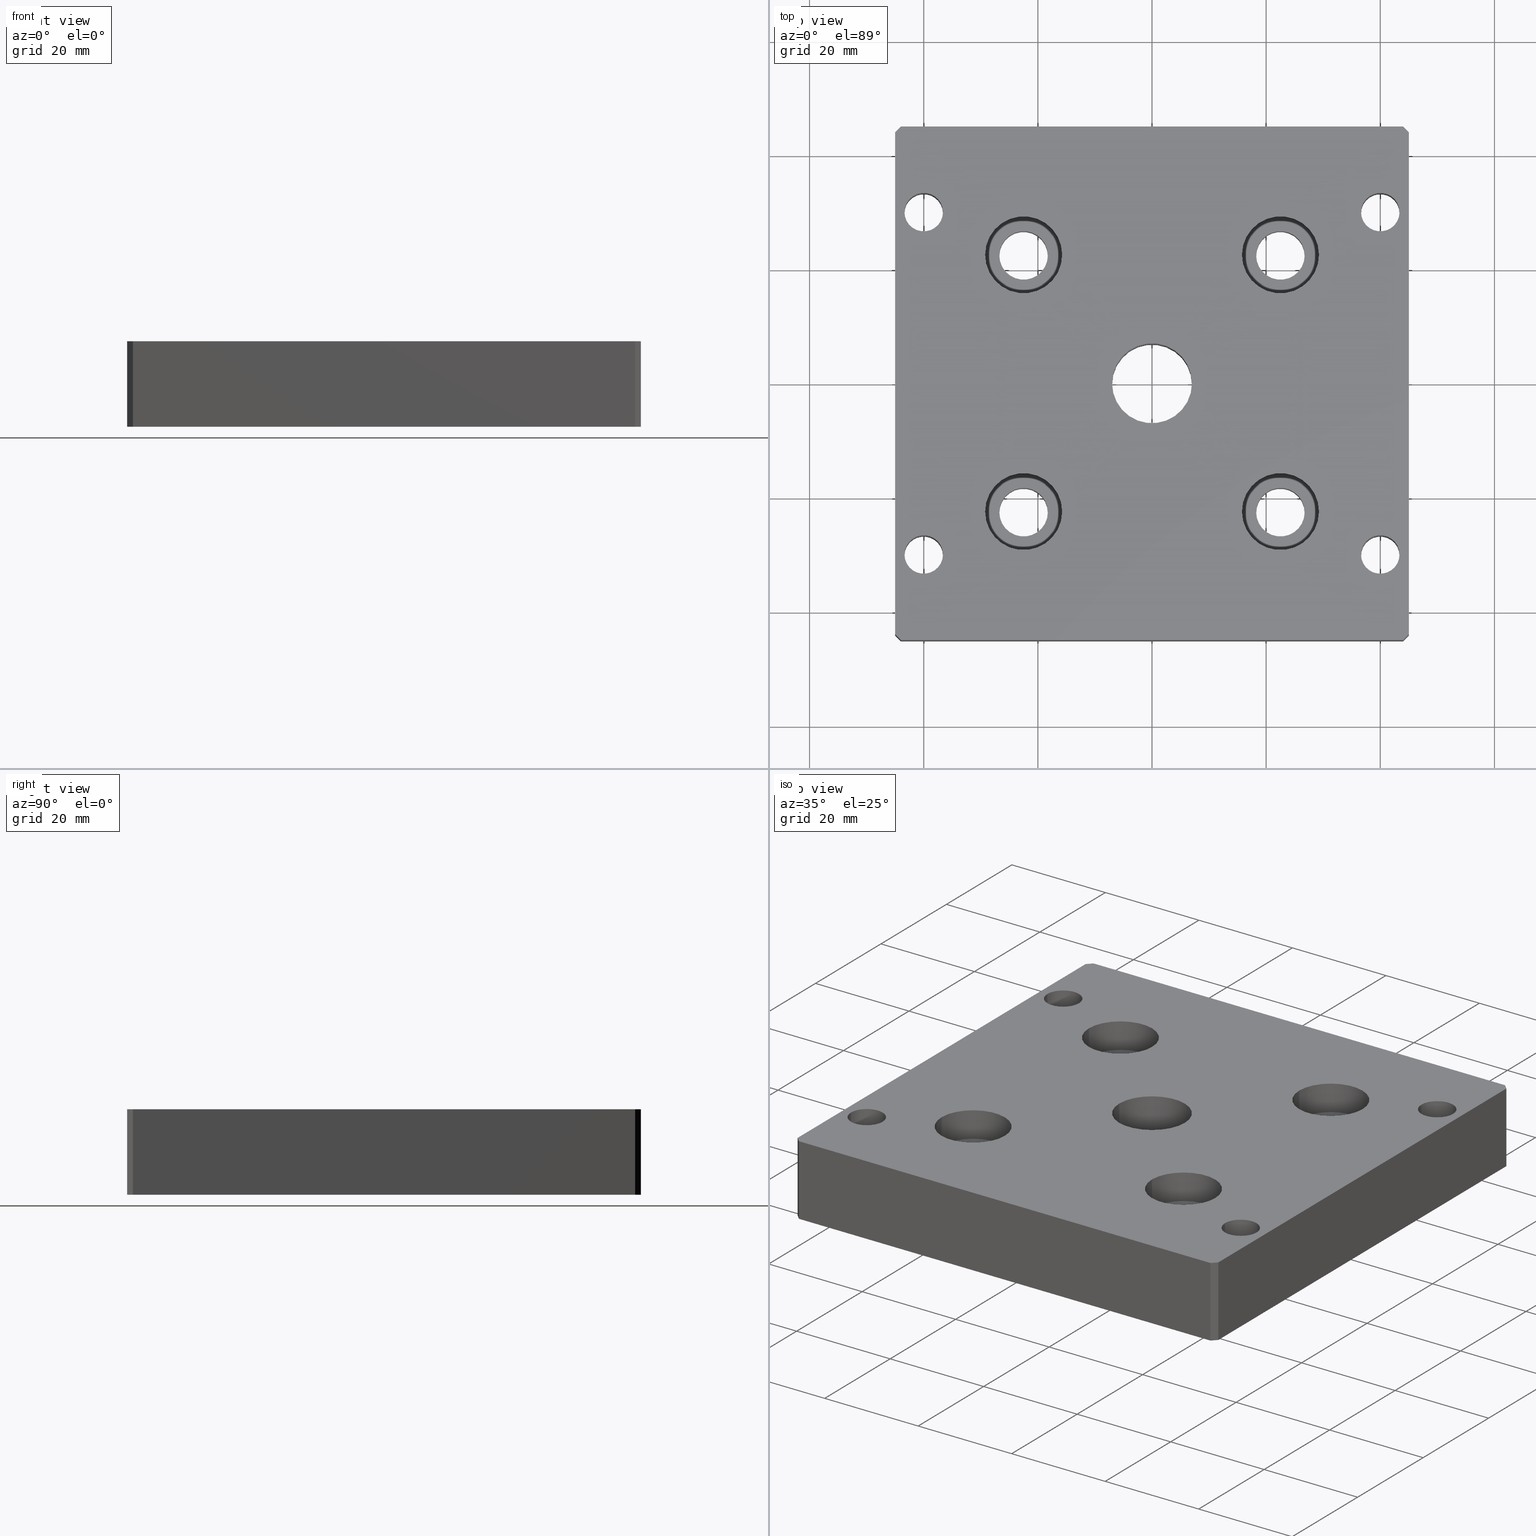
[diagram: canonical four-view strip — front | top / right | iso, engineering-drawing reading convention]
A machine part, canonical four-view strip (front | top / right | iso — engineering-drawing reading convention). The complete STEP part file that produces these views, byte-faithful:
ISO-10303-21;
HEADER;
/* Generated by software containing ST-Developer
 * from STEP Tools, Inc. (www.steptools.com) 
 */

FILE_DESCRIPTION(
/* description */ ('PIASTRA FISS. PIEDI E RUOTE M16 90X90'),
/* implementation_level */ '2;1');

FILE_NAME(
/* name */ 
'Q:\\Catalogo\\2_Accessori Dierre\\Per Download Web e catalogo cartace
o\\CATALOGO PIEDI E SOSTEGNI\\PAGINA 46\\DPSXX0000550.stp',
/* time_stamp */ '2018-11-05T17:26:36+01:00',
/* author */ ('fzagni'),
/* organization */ (''),
/* preprocessor_version */ 'ST-DEVELOPER v16.1',
/* originating_system */ 'Autodesk Inventor 2016',
/* authorisation */ '');

FILE_SCHEMA (('AUTOMOTIVE_DESIGN { 1 0 10303 214 3 1 1 }'));
ENDSEC;

DATA;
#10=MECHANICAL_DESIGN_GEOMETRIC_PRESENTATION_REPRESENTATION('',(#13),#769);
#11=SHAPE_REPRESENTATION_RELATIONSHIP('SRR','None',#778,#12);
#12=ADVANCED_BREP_SHAPE_REPRESENTATION('',(#14),#768);
#13=STYLED_ITEM('',(#787),#14);
#14=MANIFOLD_SOLID_BREP('None',#459);
#15=CYLINDRICAL_SURFACE('',#489,7.);
#16=CYLINDRICAL_SURFACE('',#490,3.375);
#17=CYLINDRICAL_SURFACE('',#491,3.375);
#18=CYLINDRICAL_SURFACE('',#492,3.375);
#19=CYLINDRICAL_SURFACE('',#493,3.375);
#20=CYLINDRICAL_SURFACE('',#494,4.25);
#21=CYLINDRICAL_SURFACE('',#498,6.75);
#22=CYLINDRICAL_SURFACE('',#499,4.25);
#23=CYLINDRICAL_SURFACE('',#503,6.75);
#24=CYLINDRICAL_SURFACE('',#504,4.25);
#25=CYLINDRICAL_SURFACE('',#508,6.75);
#26=CYLINDRICAL_SURFACE('',#509,4.25);
#27=CYLINDRICAL_SURFACE('',#513,6.75);
#28=FACE_BOUND('',#125,.T.);
#29=FACE_BOUND('',#126,.T.);
#30=FACE_BOUND('',#127,.T.);
#31=FACE_BOUND('',#128,.T.);
#32=FACE_BOUND('',#129,.T.);
#33=FACE_BOUND('',#130,.T.);
#34=FACE_BOUND('',#131,.T.);
#35=FACE_BOUND('',#132,.T.);
#36=FACE_BOUND('',#133,.T.);
#37=FACE_BOUND('',#135,.T.);
#38=FACE_BOUND('',#136,.T.);
#39=FACE_BOUND('',#137,.T.);
#40=FACE_BOUND('',#138,.T.);
#41=FACE_BOUND('',#139,.T.);
#42=FACE_BOUND('',#140,.T.);
#43=FACE_BOUND('',#141,.T.);
#44=FACE_BOUND('',#142,.T.);
#45=FACE_BOUND('',#143,.T.);
#46=FACE_BOUND('',#145,.T.);
#47=FACE_BOUND('',#147,.T.);
#48=FACE_BOUND('',#149,.T.);
#49=FACE_BOUND('',#151,.T.);
#50=FACE_BOUND('',#153,.T.);
#51=FACE_BOUND('',#155,.T.);
#52=FACE_BOUND('',#157,.T.);
#53=FACE_BOUND('',#159,.T.);
#54=FACE_BOUND('',#161,.T.);
#55=FACE_BOUND('',#163,.T.);
#56=FACE_BOUND('',#165,.T.);
#57=FACE_BOUND('',#167,.T.);
#58=FACE_BOUND('',#169,.T.);
#59=FACE_BOUND('',#171,.T.);
#60=FACE_BOUND('',#173,.T.);
#61=FACE_BOUND('',#175,.T.);
#62=FACE_BOUND('',#177,.T.);
#63=CIRCLE('',#470,7.);
#64=CIRCLE('',#471,3.375);
#65=CIRCLE('',#472,3.375);
#66=CIRCLE('',#473,3.375);
#67=CIRCLE('',#474,3.375);
#68=CIRCLE('',#475,6.75);
#69=CIRCLE('',#476,6.75);
#70=CIRCLE('',#477,6.75);
#71=CIRCLE('',#478,6.75);
#72=CIRCLE('',#480,7.);
#73=CIRCLE('',#481,3.375);
#74=CIRCLE('',#482,3.375);
#75=CIRCLE('',#483,3.375);
#76=CIRCLE('',#484,3.375);
#77=CIRCLE('',#485,4.25);
#78=CIRCLE('',#486,4.25);
#79=CIRCLE('',#487,4.25);
#80=CIRCLE('',#488,4.25);
#81=CIRCLE('',#495,4.25);
#82=CIRCLE('',#497,6.75);
#83=CIRCLE('',#500,4.25);
#84=CIRCLE('',#502,6.75);
#85=CIRCLE('',#505,4.25);
#86=CIRCLE('',#507,6.75);
#87=CIRCLE('',#510,4.25);
#88=CIRCLE('',#512,6.75);
#89=FACE_OUTER_BOUND('',#116,.T.);
#90=FACE_OUTER_BOUND('',#117,.T.);
#91=FACE_OUTER_BOUND('',#118,.T.);
#92=FACE_OUTER_BOUND('',#119,.T.);
#93=FACE_OUTER_BOUND('',#120,.T.);
#94=FACE_OUTER_BOUND('',#121,.T.);
#95=FACE_OUTER_BOUND('',#122,.T.);
#96=FACE_OUTER_BOUND('',#123,.T.);
#97=FACE_OUTER_BOUND('',#124,.T.);
#98=FACE_OUTER_BOUND('',#134,.T.);
#99=FACE_OUTER_BOUND('',#144,.T.);
#100=FACE_OUTER_BOUND('',#146,.T.);
#101=FACE_OUTER_BOUND('',#148,.T.);
#102=FACE_OUTER_BOUND('',#150,.T.);
#103=FACE_OUTER_BOUND('',#152,.T.);
#104=FACE_OUTER_BOUND('',#154,.T.);
#105=FACE_OUTER_BOUND('',#156,.T.);
#106=FACE_OUTER_BOUND('',#158,.T.);
#107=FACE_OUTER_BOUND('',#160,.T.);
#108=FACE_OUTER_BOUND('',#162,.T.);
#109=FACE_OUTER_BOUND('',#164,.T.);
#110=FACE_OUTER_BOUND('',#166,.T.);
#111=FACE_OUTER_BOUND('',#168,.T.);
#112=FACE_OUTER_BOUND('',#170,.T.);
#113=FACE_OUTER_BOUND('',#172,.T.);
#114=FACE_OUTER_BOUND('',#174,.T.);
#115=FACE_OUTER_BOUND('',#176,.T.);
#116=EDGE_LOOP('',(#318,#319,#320,#321));
#117=EDGE_LOOP('',(#322,#323,#324,#325));
#118=EDGE_LOOP('',(#326,#327,#328,#329));
#119=EDGE_LOOP('',(#330,#331,#332,#333));
#120=EDGE_LOOP('',(#334,#335,#336,#337));
#121=EDGE_LOOP('',(#338,#339,#340,#341));
#122=EDGE_LOOP('',(#342,#343,#344,#345));
#123=EDGE_LOOP('',(#346,#347,#348,#349));
#124=EDGE_LOOP('',(#350,#351,#352,#353,#354,#355,#356,#357));
#125=EDGE_LOOP('',(#358));
#126=EDGE_LOOP('',(#359));
#127=EDGE_LOOP('',(#360));
#128=EDGE_LOOP('',(#361));
#129=EDGE_LOOP('',(#362));
#130=EDGE_LOOP('',(#363));
#131=EDGE_LOOP('',(#364));
#132=EDGE_LOOP('',(#365));
#133=EDGE_LOOP('',(#366));
#134=EDGE_LOOP('',(#367,#368,#369,#370,#371,#372,#373,#374));
#135=EDGE_LOOP('',(#375));
#136=EDGE_LOOP('',(#376));
#137=EDGE_LOOP('',(#377));
#138=EDGE_LOOP('',(#378));
#139=EDGE_LOOP('',(#379));
#140=EDGE_LOOP('',(#380));
#141=EDGE_LOOP('',(#381));
#142=EDGE_LOOP('',(#382));
#143=EDGE_LOOP('',(#383));
#144=EDGE_LOOP('',(#384));
#145=EDGE_LOOP('',(#385));
#146=EDGE_LOOP('',(#386));
#147=EDGE_LOOP('',(#387));
#148=EDGE_LOOP('',(#388));
#149=EDGE_LOOP('',(#389));
#150=EDGE_LOOP('',(#390));
#151=EDGE_LOOP('',(#391));
#152=EDGE_LOOP('',(#392));
#153=EDGE_LOOP('',(#393));
#154=EDGE_LOOP('',(#394));
#155=EDGE_LOOP('',(#395));
#156=EDGE_LOOP('',(#396));
#157=EDGE_LOOP('',(#397));
#158=EDGE_LOOP('',(#398));
#159=EDGE_LOOP('',(#399));
#160=EDGE_LOOP('',(#400));
#161=EDGE_LOOP('',(#401));
#162=EDGE_LOOP('',(#402));
#163=EDGE_LOOP('',(#403));
#164=EDGE_LOOP('',(#404));
#165=EDGE_LOOP('',(#405));
#166=EDGE_LOOP('',(#406));
#167=EDGE_LOOP('',(#407));
#168=EDGE_LOOP('',(#408));
#169=EDGE_LOOP('',(#409));
#170=EDGE_LOOP('',(#410));
#171=EDGE_LOOP('',(#411));
#172=EDGE_LOOP('',(#412));
#173=EDGE_LOOP('',(#413));
#174=EDGE_LOOP('',(#414));
#175=EDGE_LOOP('',(#415));
#176=EDGE_LOOP('',(#416));
#177=EDGE_LOOP('',(#417));
#178=LINE('',#650,#202);
#179=LINE('',#652,#203);
#180=LINE('',#654,#204);
#181=LINE('',#655,#205);
#182=LINE('',#658,#206);
#183=LINE('',#660,#207);
#184=LINE('',#661,#208);
#185=LINE('',#664,#209);
#186=LINE('',#666,#210);
#187=LINE('',#667,#211);
#188=LINE('',#670,#212);
#189=LINE('',#672,#213);
#190=LINE('',#673,#214);
#191=LINE('',#676,#215);
#192=LINE('',#678,#216);
#193=LINE('',#679,#217);
#194=LINE('',#682,#218);
#195=LINE('',#684,#219);
#196=LINE('',#685,#220);
#197=LINE('',#688,#221);
#198=LINE('',#690,#222);
#199=LINE('',#691,#223);
#200=LINE('',#693,#224);
#201=LINE('',#694,#225);
#202=VECTOR('',#518,15.);
#203=VECTOR('',#519,1.41421356236698);
#204=VECTOR('',#520,15.);
#205=VECTOR('',#521,1.41421356236698);
#206=VECTOR('',#524,87.999999999648);
#207=VECTOR('',#525,15.);
#208=VECTOR('',#526,87.999999999648);
#209=VECTOR('',#529,1.41421356236763);
#210=VECTOR('',#530,15.);
#211=VECTOR('',#531,1.41421356236763);
#212=VECTOR('',#534,87.999999999648);
#213=VECTOR('',#535,15.);
#214=VECTOR('',#536,87.999999999648);
#215=VECTOR('',#539,1.41421356236763);
#216=VECTOR('',#540,15.);
#217=VECTOR('',#541,1.41421356236763);
#218=VECTOR('',#544,87.999999999648);
#219=VECTOR('',#545,15.);
#220=VECTOR('',#546,87.999999999648);
#221=VECTOR('',#549,1.41421356236698);
#222=VECTOR('',#550,15.);
#223=VECTOR('',#551,1.41421356236698);
#224=VECTOR('',#554,87.999999999648);
#225=VECTOR('',#555,87.999999999648);
#226=VERTEX_POINT('',#648);
#227=VERTEX_POINT('',#649);
#228=VERTEX_POINT('',#651);
#229=VERTEX_POINT('',#653);
#230=VERTEX_POINT('',#657);
#231=VERTEX_POINT('',#659);
#232=VERTEX_POINT('',#663);
#233=VERTEX_POINT('',#665);
#234=VERTEX_POINT('',#669);
#235=VERTEX_POINT('',#671);
#236=VERTEX_POINT('',#675);
#237=VERTEX_POINT('',#677);
#238=VERTEX_POINT('',#681);
#239=VERTEX_POINT('',#683);
#240=VERTEX_POINT('',#687);
#241=VERTEX_POINT('',#689);
#242=VERTEX_POINT('',#696);
#243=VERTEX_POINT('',#698);
#244=VERTEX_POINT('',#700);
#245=VERTEX_POINT('',#702);
#246=VERTEX_POINT('',#704);
#247=VERTEX_POINT('',#706);
#248=VERTEX_POINT('',#708);
#249=VERTEX_POINT('',#710);
#250=VERTEX_POINT('',#712);
#251=VERTEX_POINT('',#715);
#252=VERTEX_POINT('',#717);
#253=VERTEX_POINT('',#719);
#254=VERTEX_POINT('',#721);
#255=VERTEX_POINT('',#723);
#256=VERTEX_POINT('',#725);
#257=VERTEX_POINT('',#727);
#258=VERTEX_POINT('',#729);
#259=VERTEX_POINT('',#731);
#260=VERTEX_POINT('',#739);
#261=VERTEX_POINT('',#742);
#262=VERTEX_POINT('',#746);
#263=VERTEX_POINT('',#749);
#264=VERTEX_POINT('',#753);
#265=VERTEX_POINT('',#756);
#266=VERTEX_POINT('',#760);
#267=VERTEX_POINT('',#763);
#268=EDGE_CURVE('',#226,#227,#178,.T.);
#269=EDGE_CURVE('',#227,#228,#179,.T.);
#270=EDGE_CURVE('',#229,#228,#180,.T.);
#271=EDGE_CURVE('',#226,#229,#181,.T.);
#272=EDGE_CURVE('',#228,#230,#182,.T.);
#273=EDGE_CURVE('',#231,#230,#183,.T.);
#274=EDGE_CURVE('',#229,#231,#184,.T.);
#275=EDGE_CURVE('',#230,#232,#185,.T.);
#276=EDGE_CURVE('',#233,#232,#186,.T.);
#277=EDGE_CURVE('',#231,#233,#187,.T.);
#278=EDGE_CURVE('',#232,#234,#188,.T.);
#279=EDGE_CURVE('',#235,#234,#189,.T.);
#280=EDGE_CURVE('',#233,#235,#190,.T.);
#281=EDGE_CURVE('',#234,#236,#191,.T.);
#282=EDGE_CURVE('',#237,#236,#192,.T.);
#283=EDGE_CURVE('',#235,#237,#193,.T.);
#284=EDGE_CURVE('',#236,#238,#194,.T.);
#285=EDGE_CURVE('',#239,#238,#195,.T.);
#286=EDGE_CURVE('',#237,#239,#196,.T.);
#287=EDGE_CURVE('',#238,#240,#197,.T.);
#288=EDGE_CURVE('',#241,#240,#198,.T.);
#289=EDGE_CURVE('',#239,#241,#199,.T.);
#290=EDGE_CURVE('',#240,#227,#200,.T.);
#291=EDGE_CURVE('',#241,#226,#201,.T.);
#292=EDGE_CURVE('',#242,#242,#63,.T.);
#293=EDGE_CURVE('',#243,#243,#64,.T.);
#294=EDGE_CURVE('',#244,#244,#65,.T.);
#295=EDGE_CURVE('',#245,#245,#66,.T.);
#296=EDGE_CURVE('',#246,#246,#67,.T.);
#297=EDGE_CURVE('',#247,#247,#68,.T.);
#298=EDGE_CURVE('',#248,#248,#69,.T.);
#299=EDGE_CURVE('',#249,#249,#70,.T.);
#300=EDGE_CURVE('',#250,#250,#71,.T.);
#301=EDGE_CURVE('',#251,#251,#72,.T.);
#302=EDGE_CURVE('',#252,#252,#73,.T.);
#303=EDGE_CURVE('',#253,#253,#74,.T.);
#304=EDGE_CURVE('',#254,#254,#75,.T.);
#305=EDGE_CURVE('',#255,#255,#76,.T.);
#306=EDGE_CURVE('',#256,#256,#77,.T.);
#307=EDGE_CURVE('',#257,#257,#78,.T.);
#308=EDGE_CURVE('',#258,#258,#79,.T.);
#309=EDGE_CURVE('',#259,#259,#80,.T.);
#310=EDGE_CURVE('',#260,#260,#81,.T.);
#311=EDGE_CURVE('',#261,#261,#82,.T.);
#312=EDGE_CURVE('',#262,#262,#83,.T.);
#313=EDGE_CURVE('',#263,#263,#84,.T.);
#314=EDGE_CURVE('',#264,#264,#85,.T.);
#315=EDGE_CURVE('',#265,#265,#86,.T.);
#316=EDGE_CURVE('',#266,#266,#87,.T.);
#317=EDGE_CURVE('',#267,#267,#88,.T.);
#318=ORIENTED_EDGE('',*,*,#268,.T.);
#319=ORIENTED_EDGE('',*,*,#269,.T.);
#320=ORIENTED_EDGE('',*,*,#270,.F.);
#321=ORIENTED_EDGE('',*,*,#271,.F.);
#322=ORIENTED_EDGE('',*,*,#270,.T.);
#323=ORIENTED_EDGE('',*,*,#272,.T.);
#324=ORIENTED_EDGE('',*,*,#273,.F.);
#325=ORIENTED_EDGE('',*,*,#274,.F.);
#326=ORIENTED_EDGE('',*,*,#273,.T.);
#327=ORIENTED_EDGE('',*,*,#275,.T.);
#328=ORIENTED_EDGE('',*,*,#276,.F.);
#329=ORIENTED_EDGE('',*,*,#277,.F.);
#330=ORIENTED_EDGE('',*,*,#276,.T.);
#331=ORIENTED_EDGE('',*,*,#278,.T.);
#332=ORIENTED_EDGE('',*,*,#279,.F.);
#333=ORIENTED_EDGE('',*,*,#280,.F.);
#334=ORIENTED_EDGE('',*,*,#279,.T.);
#335=ORIENTED_EDGE('',*,*,#281,.T.);
#336=ORIENTED_EDGE('',*,*,#282,.F.);
#337=ORIENTED_EDGE('',*,*,#283,.F.);
#338=ORIENTED_EDGE('',*,*,#282,.T.);
#339=ORIENTED_EDGE('',*,*,#284,.T.);
#340=ORIENTED_EDGE('',*,*,#285,.F.);
#341=ORIENTED_EDGE('',*,*,#286,.F.);
#342=ORIENTED_EDGE('',*,*,#285,.T.);
#343=ORIENTED_EDGE('',*,*,#287,.T.);
#344=ORIENTED_EDGE('',*,*,#288,.F.);
#345=ORIENTED_EDGE('',*,*,#289,.F.);
#346=ORIENTED_EDGE('',*,*,#288,.T.);
#347=ORIENTED_EDGE('',*,*,#290,.T.);
#348=ORIENTED_EDGE('',*,*,#268,.F.);
#349=ORIENTED_EDGE('',*,*,#291,.F.);
#350=ORIENTED_EDGE('',*,*,#271,.T.);
#351=ORIENTED_EDGE('',*,*,#274,.T.);
#352=ORIENTED_EDGE('',*,*,#277,.T.);
#353=ORIENTED_EDGE('',*,*,#280,.T.);
#354=ORIENTED_EDGE('',*,*,#283,.T.);
#355=ORIENTED_EDGE('',*,*,#286,.T.);
#356=ORIENTED_EDGE('',*,*,#289,.T.);
#357=ORIENTED_EDGE('',*,*,#291,.T.);
#358=ORIENTED_EDGE('',*,*,#292,.F.);
#359=ORIENTED_EDGE('',*,*,#293,.F.);
#360=ORIENTED_EDGE('',*,*,#294,.F.);
#361=ORIENTED_EDGE('',*,*,#295,.F.);
#362=ORIENTED_EDGE('',*,*,#296,.F.);
#363=ORIENTED_EDGE('',*,*,#297,.F.);
#364=ORIENTED_EDGE('',*,*,#298,.F.);
#365=ORIENTED_EDGE('',*,*,#299,.F.);
#366=ORIENTED_EDGE('',*,*,#300,.F.);
#367=ORIENTED_EDGE('',*,*,#290,.F.);
#368=ORIENTED_EDGE('',*,*,#287,.F.);
#369=ORIENTED_EDGE('',*,*,#284,.F.);
#370=ORIENTED_EDGE('',*,*,#281,.F.);
#371=ORIENTED_EDGE('',*,*,#278,.F.);
#372=ORIENTED_EDGE('',*,*,#275,.F.);
#373=ORIENTED_EDGE('',*,*,#272,.F.);
#374=ORIENTED_EDGE('',*,*,#269,.F.);
#375=ORIENTED_EDGE('',*,*,#301,.F.);
#376=ORIENTED_EDGE('',*,*,#302,.F.);
#377=ORIENTED_EDGE('',*,*,#303,.F.);
#378=ORIENTED_EDGE('',*,*,#304,.F.);
#379=ORIENTED_EDGE('',*,*,#305,.F.);
#380=ORIENTED_EDGE('',*,*,#306,.T.);
#381=ORIENTED_EDGE('',*,*,#307,.T.);
#382=ORIENTED_EDGE('',*,*,#308,.T.);
#383=ORIENTED_EDGE('',*,*,#309,.T.);
#384=ORIENTED_EDGE('',*,*,#301,.T.);
#385=ORIENTED_EDGE('',*,*,#292,.T.);
#386=ORIENTED_EDGE('',*,*,#302,.T.);
#387=ORIENTED_EDGE('',*,*,#293,.T.);
#388=ORIENTED_EDGE('',*,*,#303,.T.);
#389=ORIENTED_EDGE('',*,*,#294,.T.);
#390=ORIENTED_EDGE('',*,*,#304,.T.);
#391=ORIENTED_EDGE('',*,*,#295,.T.);
#392=ORIENTED_EDGE('',*,*,#305,.T.);
#393=ORIENTED_EDGE('',*,*,#296,.T.);
#394=ORIENTED_EDGE('',*,*,#306,.F.);
#395=ORIENTED_EDGE('',*,*,#310,.T.);
#396=ORIENTED_EDGE('',*,*,#311,.T.);
#397=ORIENTED_EDGE('',*,*,#310,.F.);
#398=ORIENTED_EDGE('',*,*,#297,.T.);
#399=ORIENTED_EDGE('',*,*,#311,.F.);
#400=ORIENTED_EDGE('',*,*,#307,.F.);
#401=ORIENTED_EDGE('',*,*,#312,.T.);
#402=ORIENTED_EDGE('',*,*,#313,.T.);
#403=ORIENTED_EDGE('',*,*,#312,.F.);
#404=ORIENTED_EDGE('',*,*,#298,.T.);
#405=ORIENTED_EDGE('',*,*,#313,.F.);
#406=ORIENTED_EDGE('',*,*,#308,.F.);
#407=ORIENTED_EDGE('',*,*,#314,.T.);
#408=ORIENTED_EDGE('',*,*,#315,.T.);
#409=ORIENTED_EDGE('',*,*,#314,.F.);
#410=ORIENTED_EDGE('',*,*,#299,.T.);
#411=ORIENTED_EDGE('',*,*,#315,.F.);
#412=ORIENTED_EDGE('',*,*,#309,.F.);
#413=ORIENTED_EDGE('',*,*,#316,.T.);
#414=ORIENTED_EDGE('',*,*,#317,.T.);
#415=ORIENTED_EDGE('',*,*,#316,.F.);
#416=ORIENTED_EDGE('',*,*,#300,.T.);
#417=ORIENTED_EDGE('',*,*,#317,.F.);
#418=PLANE('',#461);
#419=PLANE('',#462);
#420=PLANE('',#463);
#421=PLANE('',#464);
#422=PLANE('',#465);
#423=PLANE('',#466);
#424=PLANE('',#467);
#425=PLANE('',#468);
#426=PLANE('',#469);
#427=PLANE('',#479);
#428=PLANE('',#496);
#429=PLANE('',#501);
#430=PLANE('',#506);
#431=PLANE('',#511);
#432=ADVANCED_FACE('',(#89),#418,.F.);
#433=ADVANCED_FACE('',(#90),#419,.F.);
#434=ADVANCED_FACE('',(#91),#420,.F.);
#435=ADVANCED_FACE('',(#92),#421,.F.);
#436=ADVANCED_FACE('',(#93),#422,.F.);
#437=ADVANCED_FACE('',(#94),#423,.F.);
#438=ADVANCED_FACE('',(#95),#424,.F.);
#439=ADVANCED_FACE('',(#96),#425,.F.);
#440=ADVANCED_FACE('',(#97,#28,#29,#30,#31,#32,#33,#34,#35,#36),#426,.T.);
#441=ADVANCED_FACE('',(#98,#37,#38,#39,#40,#41,#42,#43,#44,#45),#427,.F.);
#442=ADVANCED_FACE('',(#99,#46),#15,.F.);
#443=ADVANCED_FACE('',(#100,#47),#16,.F.);
#444=ADVANCED_FACE('',(#101,#48),#17,.F.);
#445=ADVANCED_FACE('',(#102,#49),#18,.F.);
#446=ADVANCED_FACE('',(#103,#50),#19,.F.);
#447=ADVANCED_FACE('',(#104,#51),#20,.F.);
#448=ADVANCED_FACE('',(#105,#52),#428,.F.);
#449=ADVANCED_FACE('',(#106,#53),#21,.F.);
#450=ADVANCED_FACE('',(#107,#54),#22,.F.);
#451=ADVANCED_FACE('',(#108,#55),#429,.F.);
#452=ADVANCED_FACE('',(#109,#56),#23,.F.);
#453=ADVANCED_FACE('',(#110,#57),#24,.F.);
#454=ADVANCED_FACE('',(#111,#58),#430,.F.);
#455=ADVANCED_FACE('',(#112,#59),#25,.F.);
#456=ADVANCED_FACE('',(#113,#60),#26,.F.);
#457=ADVANCED_FACE('',(#114,#61),#431,.F.);
#458=ADVANCED_FACE('',(#115,#62),#27,.F.);
#459=CLOSED_SHELL('',(#432,#433,#434,#435,#436,#437,#438,#439,#440,#441,
#442,#443,#444,#445,#446,#447,#448,#449,#450,#451,#452,#453,#454,#455,#456,
#457,#458));
#460=AXIS2_PLACEMENT_3D('placement',#646,#514,#515);
#461=AXIS2_PLACEMENT_3D('',#647,#516,#517);
#462=AXIS2_PLACEMENT_3D('',#656,#522,#523);
#463=AXIS2_PLACEMENT_3D('',#662,#527,#528);
#464=AXIS2_PLACEMENT_3D('',#668,#532,#533);
#465=AXIS2_PLACEMENT_3D('',#674,#537,#538);
#466=AXIS2_PLACEMENT_3D('',#680,#542,#543);
#467=AXIS2_PLACEMENT_3D('',#686,#547,#548);
#468=AXIS2_PLACEMENT_3D('',#692,#552,#553);
#469=AXIS2_PLACEMENT_3D('',#695,#556,#557);
#470=AXIS2_PLACEMENT_3D('',#697,#558,#559);
#471=AXIS2_PLACEMENT_3D('',#699,#560,#561);
#472=AXIS2_PLACEMENT_3D('',#701,#562,#563);
#473=AXIS2_PLACEMENT_3D('',#703,#564,#565);
#474=AXIS2_PLACEMENT_3D('',#705,#566,#567);
#475=AXIS2_PLACEMENT_3D('',#707,#568,#569);
#476=AXIS2_PLACEMENT_3D('',#709,#570,#571);
#477=AXIS2_PLACEMENT_3D('',#711,#572,#573);
#478=AXIS2_PLACEMENT_3D('',#713,#574,#575);
#479=AXIS2_PLACEMENT_3D('',#714,#576,#577);
#480=AXIS2_PLACEMENT_3D('',#716,#578,#579);
#481=AXIS2_PLACEMENT_3D('',#718,#580,#581);
#482=AXIS2_PLACEMENT_3D('',#720,#582,#583);
#483=AXIS2_PLACEMENT_3D('',#722,#584,#585);
#484=AXIS2_PLACEMENT_3D('',#724,#586,#587);
#485=AXIS2_PLACEMENT_3D('',#726,#588,#589);
#486=AXIS2_PLACEMENT_3D('',#728,#590,#591);
#487=AXIS2_PLACEMENT_3D('',#730,#592,#593);
#488=AXIS2_PLACEMENT_3D('',#732,#594,#595);
#489=AXIS2_PLACEMENT_3D('',#733,#596,#597);
#490=AXIS2_PLACEMENT_3D('',#734,#598,#599);
#491=AXIS2_PLACEMENT_3D('',#735,#600,#601);
#492=AXIS2_PLACEMENT_3D('',#736,#602,#603);
#493=AXIS2_PLACEMENT_3D('',#737,#604,#605);
#494=AXIS2_PLACEMENT_3D('',#738,#606,#607);
#495=AXIS2_PLACEMENT_3D('',#740,#608,#609);
#496=AXIS2_PLACEMENT_3D('',#741,#610,#611);
#497=AXIS2_PLACEMENT_3D('',#743,#612,#613);
#498=AXIS2_PLACEMENT_3D('',#744,#614,#615);
#499=AXIS2_PLACEMENT_3D('',#745,#616,#617);
#500=AXIS2_PLACEMENT_3D('',#747,#618,#619);
#501=AXIS2_PLACEMENT_3D('',#748,#620,#621);
#502=AXIS2_PLACEMENT_3D('',#750,#622,#623);
#503=AXIS2_PLACEMENT_3D('',#751,#624,#625);
#504=AXIS2_PLACEMENT_3D('',#752,#626,#627);
#505=AXIS2_PLACEMENT_3D('',#754,#628,#629);
#506=AXIS2_PLACEMENT_3D('',#755,#630,#631);
#507=AXIS2_PLACEMENT_3D('',#757,#632,#633);
#508=AXIS2_PLACEMENT_3D('',#758,#634,#635);
#509=AXIS2_PLACEMENT_3D('',#759,#636,#637);
#510=AXIS2_PLACEMENT_3D('',#761,#638,#639);
#511=AXIS2_PLACEMENT_3D('',#762,#640,#641);
#512=AXIS2_PLACEMENT_3D('',#764,#642,#643);
#513=AXIS2_PLACEMENT_3D('',#765,#644,#645);
#514=DIRECTION('axis',(0.,0.,1.));
#515=DIRECTION('refdir',(1.,0.,0.));
#516=DIRECTION('center_axis',(0.707106781186708,0.707106781186387,0.));
#517=DIRECTION('ref_axis',(0.,0.,-1.));
#518=DIRECTION('',(0.,0.,-1.));
#519=DIRECTION('',(0.707106781186387,-0.707106781186708,0.));
#520=DIRECTION('',(0.,0.,-1.));
#521=DIRECTION('',(0.707106781186387,-0.707106781186708,0.));
#522=DIRECTION('center_axis',(0.,1.,0.));
#523=DIRECTION('ref_axis',(0.,0.,1.));
#524=DIRECTION('',(1.,0.,0.));
#525=DIRECTION('',(0.,0.,-1.));
#526=DIRECTION('',(1.,0.,0.));
#527=DIRECTION('center_axis',(-0.707106781186387,0.707106781186708,0.));
#528=DIRECTION('ref_axis',(0.,0.,1.));
#529=DIRECTION('',(0.707106781186708,0.707106781186387,0.));
#530=DIRECTION('',(0.,0.,-1.));
#531=DIRECTION('',(0.707106781186708,0.707106781186387,0.));
#532=DIRECTION('center_axis',(-1.,0.,0.));
#533=DIRECTION('ref_axis',(0.,0.,1.));
#534=DIRECTION('',(0.,1.,0.));
#535=DIRECTION('',(0.,0.,-1.));
#536=DIRECTION('',(0.,1.,0.));
#537=DIRECTION('center_axis',(-0.707106781186387,-0.707106781186708,0.));
#538=DIRECTION('ref_axis',(0.,0.,1.));
#539=DIRECTION('',(-0.707106781186708,0.707106781186387,0.));
#540=DIRECTION('',(0.,0.,-1.));
#541=DIRECTION('',(-0.707106781186708,0.707106781186387,0.));
#542=DIRECTION('center_axis',(0.,-1.,0.));
#543=DIRECTION('ref_axis',(0.,0.,-1.));
#544=DIRECTION('',(-1.,0.,0.));
#545=DIRECTION('',(0.,0.,-1.));
#546=DIRECTION('',(-1.,0.,0.));
#547=DIRECTION('center_axis',(0.707106781186708,-0.707106781186387,0.));
#548=DIRECTION('ref_axis',(0.,0.,-1.));
#549=DIRECTION('',(-0.707106781186387,-0.707106781186708,0.));
#550=DIRECTION('',(0.,0.,-1.));
#551=DIRECTION('',(-0.707106781186387,-0.707106781186708,0.));
#552=DIRECTION('center_axis',(1.,0.,0.));
#553=DIRECTION('ref_axis',(0.,0.,-1.));
#554=DIRECTION('',(0.,-1.,0.));
#555=DIRECTION('',(0.,-1.,0.));
#556=DIRECTION('center_axis',(0.,0.,1.));
#557=DIRECTION('ref_axis',(1.,0.,0.));
#558=DIRECTION('center_axis',(0.,0.,1.));
#559=DIRECTION('ref_axis',(1.,0.,0.));
#560=DIRECTION('center_axis',(0.,0.,1.));
#561=DIRECTION('ref_axis',(1.,0.,0.));
#562=DIRECTION('center_axis',(0.,0.,1.));
#563=DIRECTION('ref_axis',(1.,0.,0.));
#564=DIRECTION('center_axis',(0.,0.,1.));
#565=DIRECTION('ref_axis',(1.,0.,0.));
#566=DIRECTION('center_axis',(0.,0.,1.));
#567=DIRECTION('ref_axis',(1.,0.,0.));
#568=DIRECTION('center_axis',(0.,0.,1.));
#569=DIRECTION('ref_axis',(1.,0.,0.));
#570=DIRECTION('center_axis',(0.,0.,1.));
#571=DIRECTION('ref_axis',(1.,0.,0.));
#572=DIRECTION('center_axis',(0.,0.,1.));
#573=DIRECTION('ref_axis',(1.,0.,0.));
#574=DIRECTION('center_axis',(0.,0.,1.));
#575=DIRECTION('ref_axis',(1.,0.,0.));
#576=DIRECTION('center_axis',(0.,0.,1.));
#577=DIRECTION('ref_axis',(1.,0.,0.));
#578=DIRECTION('center_axis',(0.,0.,-1.));
#579=DIRECTION('ref_axis',(1.,0.,0.));
#580=DIRECTION('center_axis',(0.,0.,-1.));
#581=DIRECTION('ref_axis',(1.,0.,0.));
#582=DIRECTION('center_axis',(0.,0.,-1.));
#583=DIRECTION('ref_axis',(1.,0.,0.));
#584=DIRECTION('center_axis',(0.,0.,-1.));
#585=DIRECTION('ref_axis',(1.,0.,0.));
#586=DIRECTION('center_axis',(0.,0.,-1.));
#587=DIRECTION('ref_axis',(1.,0.,0.));
#588=DIRECTION('center_axis',(0.,0.,1.));
#589=DIRECTION('ref_axis',(1.,0.,0.));
#590=DIRECTION('center_axis',(0.,0.,1.));
#591=DIRECTION('ref_axis',(1.,0.,0.));
#592=DIRECTION('center_axis',(0.,0.,1.));
#593=DIRECTION('ref_axis',(1.,0.,0.));
#594=DIRECTION('center_axis',(0.,0.,1.));
#595=DIRECTION('ref_axis',(1.,0.,0.));
#596=DIRECTION('center_axis',(0.,0.,1.));
#597=DIRECTION('ref_axis',(1.,0.,0.));
#598=DIRECTION('center_axis',(0.,0.,1.));
#599=DIRECTION('ref_axis',(1.,0.,0.));
#600=DIRECTION('center_axis',(0.,0.,1.));
#601=DIRECTION('ref_axis',(1.,0.,0.));
#602=DIRECTION('center_axis',(0.,0.,1.));
#603=DIRECTION('ref_axis',(1.,0.,0.));
#604=DIRECTION('center_axis',(0.,0.,1.));
#605=DIRECTION('ref_axis',(1.,0.,0.));
#606=DIRECTION('center_axis',(0.,0.,1.));
#607=DIRECTION('ref_axis',(1.,0.,0.));
#608=DIRECTION('center_axis',(0.,0.,1.));
#609=DIRECTION('ref_axis',(1.,0.,0.));
#610=DIRECTION('center_axis',(0.,0.,-1.));
#611=DIRECTION('ref_axis',(-1.,0.,0.));
#612=DIRECTION('center_axis',(0.,0.,1.));
#613=DIRECTION('ref_axis',(1.,0.,0.));
#614=DIRECTION('center_axis',(0.,0.,1.));
#615=DIRECTION('ref_axis',(1.,0.,0.));
#616=DIRECTION('center_axis',(0.,0.,1.));
#617=DIRECTION('ref_axis',(1.,0.,0.));
#618=DIRECTION('center_axis',(0.,0.,1.));
#619=DIRECTION('ref_axis',(1.,0.,0.));
#620=DIRECTION('center_axis',(0.,0.,-1.));
#621=DIRECTION('ref_axis',(-1.,0.,0.));
#622=DIRECTION('center_axis',(0.,0.,1.));
#623=DIRECTION('ref_axis',(1.,0.,0.));
#624=DIRECTION('center_axis',(0.,0.,1.));
#625=DIRECTION('ref_axis',(1.,0.,0.));
#626=DIRECTION('center_axis',(0.,0.,1.));
#627=DIRECTION('ref_axis',(1.,0.,0.));
#628=DIRECTION('center_axis',(0.,0.,1.));
#629=DIRECTION('ref_axis',(1.,0.,0.));
#630=DIRECTION('center_axis',(0.,0.,-1.));
#631=DIRECTION('ref_axis',(-1.,0.,0.));
#632=DIRECTION('center_axis',(0.,0.,1.));
#633=DIRECTION('ref_axis',(1.,0.,0.));
#634=DIRECTION('center_axis',(0.,0.,1.));
#635=DIRECTION('ref_axis',(1.,0.,0.));
#636=DIRECTION('center_axis',(0.,0.,1.));
#637=DIRECTION('ref_axis',(1.,0.,0.));
#638=DIRECTION('center_axis',(0.,0.,1.));
#639=DIRECTION('ref_axis',(1.,0.,0.));
#640=DIRECTION('center_axis',(0.,0.,-1.));
#641=DIRECTION('ref_axis',(-1.,0.,0.));
#642=DIRECTION('center_axis',(0.,0.,1.));
#643=DIRECTION('ref_axis',(1.,0.,0.));
#644=DIRECTION('center_axis',(0.,0.,1.));
#645=DIRECTION('ref_axis',(1.,0.,0.));
#646=CARTESIAN_POINT('',(0.,0.,0.));
#647=CARTESIAN_POINT('Origin',(-44.9999999998199,-43.999999999824,0.));
#648=CARTESIAN_POINT('',(-44.9999999998199,-43.999999999824,0.));
#649=CARTESIAN_POINT('',(-44.9999999998199,-43.999999999824,-15.));
#650=CARTESIAN_POINT('',(-44.9999999998199,-43.999999999824,0.));
#651=CARTESIAN_POINT('',(-43.9999999998245,-44.9999999998199,-15.));
#652=CARTESIAN_POINT('',(-44.9999999998199,-43.999999999824,-15.));
#653=CARTESIAN_POINT('',(-43.9999999998245,-44.9999999998199,0.));
#654=CARTESIAN_POINT('',(-43.9999999998245,-44.9999999998199,0.));
#655=CARTESIAN_POINT('',(-44.9999999998199,-43.999999999824,0.));
#656=CARTESIAN_POINT('Origin',(-43.9999999998245,-44.9999999998199,0.));
#657=CARTESIAN_POINT('',(43.9999999998236,-44.9999999998199,-15.));
#658=CARTESIAN_POINT('',(-43.9999999998245,-44.9999999998199,-15.));
#659=CARTESIAN_POINT('',(43.9999999998236,-44.9999999998199,0.));
#660=CARTESIAN_POINT('',(43.9999999998236,-44.9999999998199,0.));
#661=CARTESIAN_POINT('',(-43.9999999998245,-44.9999999998199,0.));
#662=CARTESIAN_POINT('Origin',(43.9999999998236,-44.9999999998199,0.));
#663=CARTESIAN_POINT('',(44.9999999998199,-43.999999999824,-15.));
#664=CARTESIAN_POINT('',(43.9999999998236,-44.9999999998199,-15.));
#665=CARTESIAN_POINT('',(44.9999999998199,-43.999999999824,0.));
#666=CARTESIAN_POINT('',(44.9999999998199,-43.999999999824,0.));
#667=CARTESIAN_POINT('',(43.9999999998236,-44.9999999998199,0.));
#668=CARTESIAN_POINT('Origin',(44.9999999998199,-43.999999999824,0.));
#669=CARTESIAN_POINT('',(44.9999999998199,43.999999999824,-15.));
#670=CARTESIAN_POINT('',(44.9999999998199,-43.999999999824,-15.));
#671=CARTESIAN_POINT('',(44.9999999998199,43.999999999824,0.));
#672=CARTESIAN_POINT('',(44.9999999998199,43.999999999824,0.));
#673=CARTESIAN_POINT('',(44.9999999998199,-43.999999999824,0.));
#674=CARTESIAN_POINT('Origin',(44.9999999998199,43.999999999824,0.));
#675=CARTESIAN_POINT('',(43.9999999998236,44.9999999998199,-15.));
#676=CARTESIAN_POINT('',(44.9999999998199,43.999999999824,-15.));
#677=CARTESIAN_POINT('',(43.9999999998236,44.9999999998199,0.));
#678=CARTESIAN_POINT('',(43.9999999998236,44.9999999998199,0.));
#679=CARTESIAN_POINT('',(44.9999999998199,43.999999999824,0.));
#680=CARTESIAN_POINT('Origin',(43.9999999998236,44.9999999998199,0.));
#681=CARTESIAN_POINT('',(-43.9999999998245,44.9999999998199,-15.));
#682=CARTESIAN_POINT('',(43.9999999998236,44.9999999998199,-15.));
#683=CARTESIAN_POINT('',(-43.9999999998245,44.9999999998199,0.));
#684=CARTESIAN_POINT('',(-43.9999999998245,44.9999999998199,0.));
#685=CARTESIAN_POINT('',(43.9999999998236,44.9999999998199,0.));
#686=CARTESIAN_POINT('Origin',(-43.9999999998245,44.9999999998199,0.));
#687=CARTESIAN_POINT('',(-44.9999999998199,43.999999999824,-15.));
#688=CARTESIAN_POINT('',(-43.9999999998245,44.9999999998199,-15.));
#689=CARTESIAN_POINT('',(-44.9999999998199,43.999999999824,0.));
#690=CARTESIAN_POINT('',(-44.9999999998199,43.999999999824,0.));
#691=CARTESIAN_POINT('',(-43.9999999998245,44.9999999998199,0.));
#692=CARTESIAN_POINT('Origin',(-44.9999999998199,43.999999999824,0.));
#693=CARTESIAN_POINT('',(-44.9999999998199,43.999999999824,-15.));
#694=CARTESIAN_POINT('',(-44.9999999998199,43.999999999824,0.));
#695=CARTESIAN_POINT('Origin',(-54.0000047374324,-54.0000047376525,0.));
#696=CARTESIAN_POINT('',(-7.,0.,0.));
#697=CARTESIAN_POINT('Origin',(0.,0.,0.));
#698=CARTESIAN_POINT('',(-43.3749999998599,29.9999999999,0.));
#699=CARTESIAN_POINT('Origin',(-39.9999999998599,29.9999999999,0.));
#700=CARTESIAN_POINT('',(36.6249999998599,29.9999999999,0.));
#701=CARTESIAN_POINT('Origin',(39.9999999998599,29.9999999999,0.));
#702=CARTESIAN_POINT('',(36.6249999998599,-29.9999999999,0.));
#703=CARTESIAN_POINT('Origin',(39.9999999998599,-29.9999999999,0.));
#704=CARTESIAN_POINT('',(-43.3749999998599,-29.9999999999,0.));
#705=CARTESIAN_POINT('Origin',(-39.9999999998599,-29.9999999999,0.));
#706=CARTESIAN_POINT('',(-29.24999999991,22.49999999991,0.));
#707=CARTESIAN_POINT('Origin',(-22.49999999991,22.49999999991,0.));
#708=CARTESIAN_POINT('',(15.74999999991,22.49999999991,0.));
#709=CARTESIAN_POINT('Origin',(22.49999999991,22.49999999991,0.));
#710=CARTESIAN_POINT('',(15.74999999991,-22.49999999991,0.));
#711=CARTESIAN_POINT('Origin',(22.49999999991,-22.49999999991,0.));
#712=CARTESIAN_POINT('',(-29.24999999991,-22.49999999991,0.));
#713=CARTESIAN_POINT('Origin',(-22.49999999991,-22.49999999991,0.));
#714=CARTESIAN_POINT('Origin',(-54.0000047374324,-54.0000047376525,-15.));
#715=CARTESIAN_POINT('',(-7.,0.,-15.));
#716=CARTESIAN_POINT('Origin',(0.,0.,-15.));
#717=CARTESIAN_POINT('',(-43.3749999998599,29.9999999999,-15.));
#718=CARTESIAN_POINT('Origin',(-39.9999999998599,29.9999999999,-15.));
#719=CARTESIAN_POINT('',(36.6249999998599,29.9999999999,-15.));
#720=CARTESIAN_POINT('Origin',(39.9999999998599,29.9999999999,-15.));
#721=CARTESIAN_POINT('',(36.6249999998599,-29.9999999999,-15.));
#722=CARTESIAN_POINT('Origin',(39.9999999998599,-29.9999999999,-15.));
#723=CARTESIAN_POINT('',(-43.3749999998599,-29.9999999999,-15.));
#724=CARTESIAN_POINT('Origin',(-39.9999999998599,-29.9999999999,-15.));
#725=CARTESIAN_POINT('',(-26.74999999991,22.49999999991,-15.));
#726=CARTESIAN_POINT('Origin',(-22.49999999991,22.49999999991,-15.));
#727=CARTESIAN_POINT('',(18.24999999991,22.49999999991,-15.));
#728=CARTESIAN_POINT('Origin',(22.49999999991,22.49999999991,-15.));
#729=CARTESIAN_POINT('',(18.24999999991,-22.49999999991,-15.));
#730=CARTESIAN_POINT('Origin',(22.49999999991,-22.49999999991,-15.));
#731=CARTESIAN_POINT('',(-26.74999999991,-22.49999999991,-15.));
#732=CARTESIAN_POINT('Origin',(-22.49999999991,-22.49999999991,-15.));
#733=CARTESIAN_POINT('Origin',(0.,0.,0.));
#734=CARTESIAN_POINT('Origin',(-39.9999999998599,29.9999999999,0.));
#735=CARTESIAN_POINT('Origin',(39.9999999998599,29.9999999999,0.));
#736=CARTESIAN_POINT('Origin',(39.9999999998599,-29.9999999999,0.));
#737=CARTESIAN_POINT('Origin',(-39.9999999998599,-29.9999999999,0.));
#738=CARTESIAN_POINT('Origin',(-22.49999999991,22.49999999991,-16.5158646583557));
#739=CARTESIAN_POINT('',(-26.74999999991,22.49999999991,-5.5));
#740=CARTESIAN_POINT('Origin',(-22.49999999991,22.49999999991,-5.5));
#741=CARTESIAN_POINT('Origin',(-35.99999999991,8.99999999990996,-5.5));
#742=CARTESIAN_POINT('',(-29.24999999991,22.49999999991,-5.5));
#743=CARTESIAN_POINT('Origin',(-22.49999999991,22.49999999991,-5.5));
#744=CARTESIAN_POINT('Origin',(-22.49999999991,22.49999999991,-5.5));
#745=CARTESIAN_POINT('Origin',(22.49999999991,22.49999999991,-16.5158646583557));
#746=CARTESIAN_POINT('',(18.24999999991,22.49999999991,-5.5));
#747=CARTESIAN_POINT('Origin',(22.49999999991,22.49999999991,-5.5));
#748=CARTESIAN_POINT('Origin',(8.99999999990996,8.99999999990996,-5.5));
#749=CARTESIAN_POINT('',(15.74999999991,22.49999999991,-5.5));
#750=CARTESIAN_POINT('Origin',(22.49999999991,22.49999999991,-5.5));
#751=CARTESIAN_POINT('Origin',(22.49999999991,22.49999999991,-5.5));
#752=CARTESIAN_POINT('Origin',(22.49999999991,-22.49999999991,-16.5158646583557));
#753=CARTESIAN_POINT('',(18.24999999991,-22.49999999991,-5.5));
#754=CARTESIAN_POINT('Origin',(22.49999999991,-22.49999999991,-5.5));
#755=CARTESIAN_POINT('Origin',(8.99999999990996,-35.99999999991,-5.5));
#756=CARTESIAN_POINT('',(15.74999999991,-22.49999999991,-5.5));
#757=CARTESIAN_POINT('Origin',(22.49999999991,-22.49999999991,-5.5));
#758=CARTESIAN_POINT('Origin',(22.49999999991,-22.49999999991,-5.5));
#759=CARTESIAN_POINT('Origin',(-22.49999999991,-22.49999999991,-16.5158646583557));
#760=CARTESIAN_POINT('',(-26.74999999991,-22.49999999991,-5.5));
#761=CARTESIAN_POINT('Origin',(-22.49999999991,-22.49999999991,-5.5));
#762=CARTESIAN_POINT('Origin',(-35.99999999991,-35.99999999991,-5.5));
#763=CARTESIAN_POINT('',(-29.24999999991,-22.49999999991,-5.5));
#764=CARTESIAN_POINT('Origin',(-22.49999999991,-22.49999999991,-5.5));
#765=CARTESIAN_POINT('Origin',(-22.49999999991,-22.49999999991,-5.5));
#766=UNCERTAINTY_MEASURE_WITH_UNIT(LENGTH_MEASURE(0.01),#770,
'DISTANCE_ACCURACY_VALUE',
'Maximum model space distance between geometric entities at asserted c
onnectivities');
#767=UNCERTAINTY_MEASURE_WITH_UNIT(LENGTH_MEASURE(1.E-6),#770,
'DISTANCE_ACCURACY_VALUE',
'Maximum model space distance between geometric entities at asserted c
onnectivities');
#768=(
GEOMETRIC_REPRESENTATION_CONTEXT(3)
GLOBAL_UNCERTAINTY_ASSIGNED_CONTEXT((#766))
GLOBAL_UNIT_ASSIGNED_CONTEXT((#770,#773,#771))
REPRESENTATION_CONTEXT('','3D')
);
#769=(
GEOMETRIC_REPRESENTATION_CONTEXT(3)
GLOBAL_UNCERTAINTY_ASSIGNED_CONTEXT((#767))
GLOBAL_UNIT_ASSIGNED_CONTEXT((#770,#773,#771))
REPRESENTATION_CONTEXT('','3D')
);
#770=(
LENGTH_UNIT()
NAMED_UNIT(*)
SI_UNIT(.MILLI.,.METRE.)
);
#771=(
NAMED_UNIT(*)
SI_UNIT($,.STERADIAN.)
SOLID_ANGLE_UNIT()
);
#772=DIMENSIONAL_EXPONENTS(0.,0.,0.,0.,0.,0.,0.);
#773=(
CONVERSION_BASED_UNIT('degree',#775)
NAMED_UNIT(#772)
PLANE_ANGLE_UNIT()
);
#774=(
NAMED_UNIT(*)
PLANE_ANGLE_UNIT()
SI_UNIT($,.RADIAN.)
);
#775=PLANE_ANGLE_MEASURE_WITH_UNIT(PLANE_ANGLE_MEASURE(0.01745329252),#774);
#776=SHAPE_DEFINITION_REPRESENTATION(#777,#778);
#777=PRODUCT_DEFINITION_SHAPE('',$,#780);
#778=SHAPE_REPRESENTATION('',(#460),#768);
#779=PRODUCT_DEFINITION_CONTEXT('part definition',#784,'design');
#780=PRODUCT_DEFINITION('DPSXX0000550 (31.101.00A)',
'DPSXX0000550 (31.101.00A)',#781,#779);
#781=PRODUCT_DEFINITION_FORMATION('','B',#786);
#782=PRODUCT_RELATED_PRODUCT_CATEGORY('DPSXX0000550 (31.101.00A)',
'DPSXX0000550 (31.101.00A)',(#786));
#783=APPLICATION_PROTOCOL_DEFINITION('international standard',
'automotive_design',2009,#784);
#784=APPLICATION_CONTEXT(
'Core Data for Automotive Mechanical Design Process');
#785=PRODUCT_CONTEXT('part definition',#784,'mechanical');
#786=PRODUCT('DPSXX0000550 (31.101.00A)','DPSXX0000550 (31.101.00A)',$,
(#785));
#787=PRESENTATION_STYLE_ASSIGNMENT((#788));
#788=SURFACE_STYLE_USAGE(.BOTH.,#789);
#789=SURFACE_SIDE_STYLE('',(#790));
#790=SURFACE_STYLE_FILL_AREA(#791);
#791=FILL_AREA_STYLE('',(#792));
#792=FILL_AREA_STYLE_COLOUR('',#793);
#793=COLOUR_RGB('',0.72156862745098,0.694117647058824,0.705882352941177);
ENDSEC;
END-ISO-10303-21;
